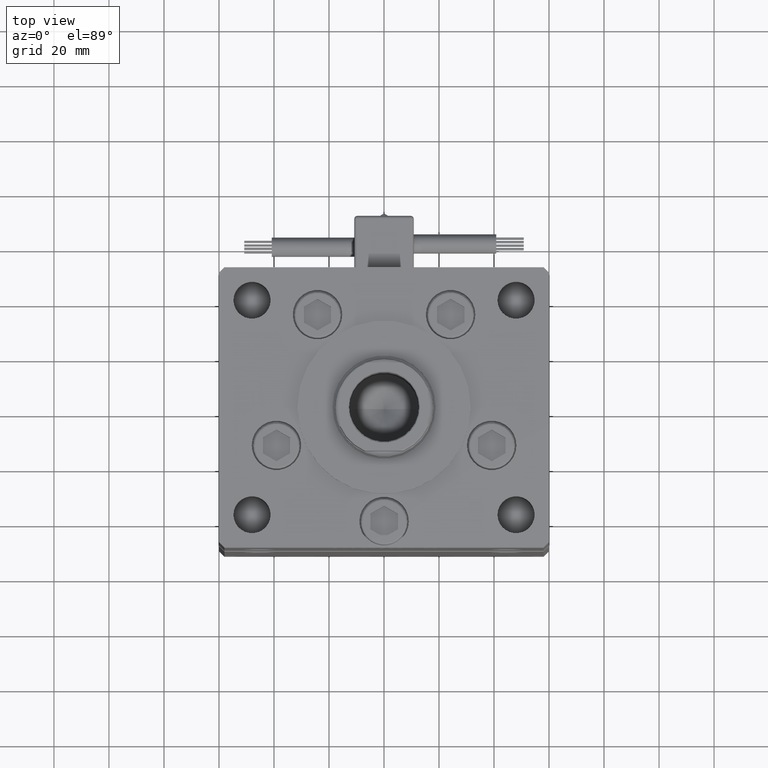
[diagram: clean part render]
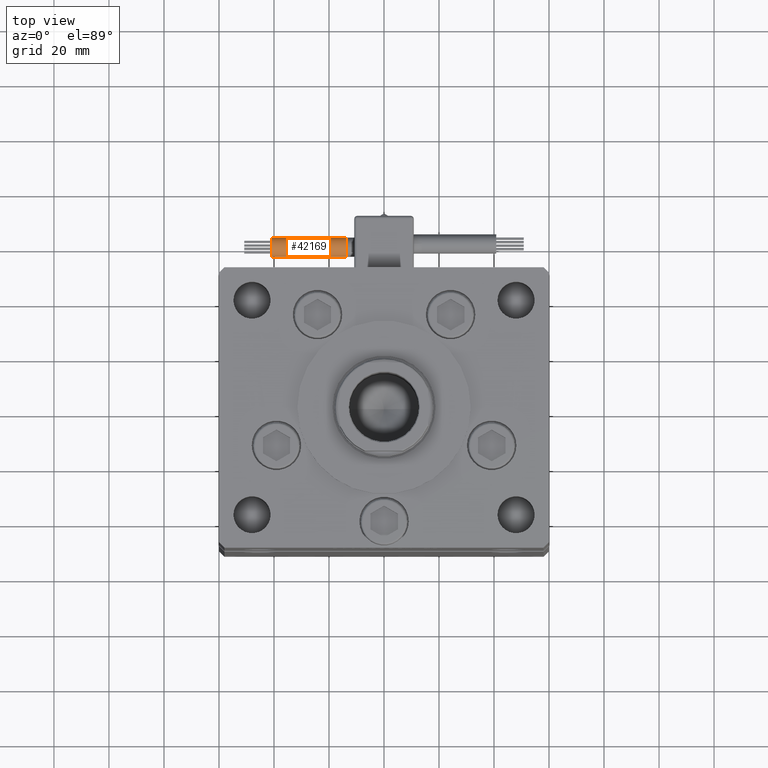
[diagram: same view with one face highlighted and labeled with its STEP entity id]
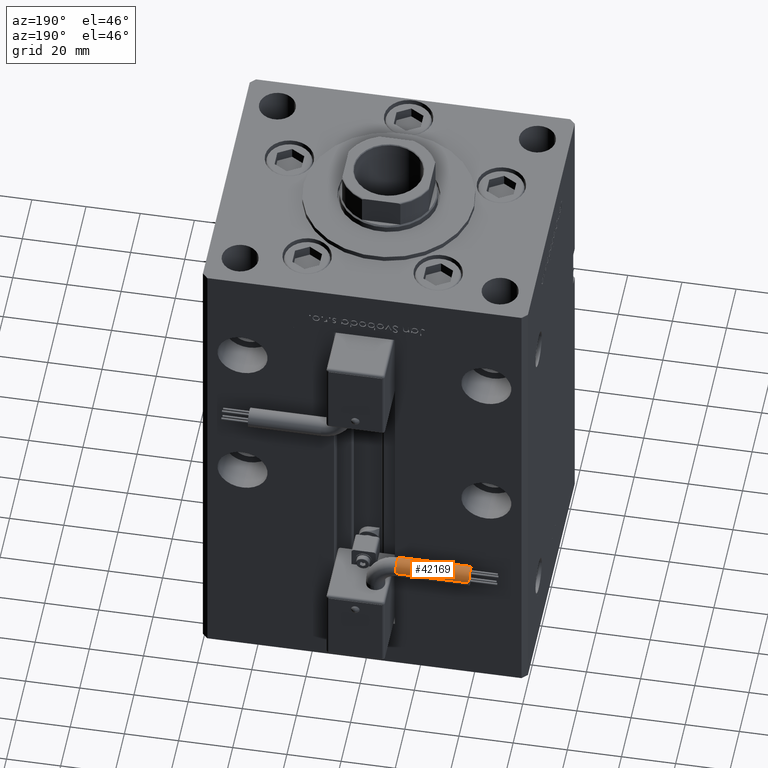
[diagram: same view with one face highlighted and labeled with its STEP entity id]
A machine part, top view. The second image highlights one B-rep face of the part: STEP entity #42169.
A second angle (auxiliary view) of the same face is appended — the face is thin or edge-on in the first view.
In plain terms, the highlighted cylindrical surface (edge-blend (fillet) strip) has radius 3.5 mm, axis along (-1, -0, -0).
Its self-contained STEP definition (entity closure, byte-faithful):
#4520 = CIRCLE ( 'NONE', #27277, 3.500000000000003109 ) ;
#4698 = EDGE_CURVE ( 'NONE', #54183, #52509, #15511, .T. ) ;
#4798 = DIRECTION ( 'NONE',  ( 1.000000000000000000, -2.599999999999999847E-16, 2.220446049250000002E-16 ) ) ;
#7706 = ORIENTED_EDGE ( 'NONE', *, *, #4698, .T. ) ;
#8772 = DIRECTION ( 'NONE',  ( 1.000000000000000000, 0.000000000000000000, 2.220446049250000002E-16 ) ) ;
#9376 = DIRECTION ( 'NONE',  ( -4.956352788505158337E-16, -1.000000000000000000, 0.000000000000000000 ) ) ;
#11042 = DIRECTION ( 'NONE',  ( 0.000000000000000000, 0.000000000000000000, -1.000000000000000000 ) ) ;
#11944 = VECTOR ( 'NONE', #54287, 1000.000000000000000 ) ;
#12543 = CARTESIAN_POINT ( 'NONE',  ( 13.79999999999999893, 42.00000000000000000, -65.00000000000000000 ) ) ;
#15511 = LINE ( 'NONE', #41171, #11944 ) ;
#19048 = CARTESIAN_POINT ( 'NONE',  ( 40.80000000000000426, 45.50000000000000711, -65.00000000000000000 ) ) ;
#20120 = EDGE_CURVE ( 'NONE', #45503, #51771, #25311, .T. ) ;
#20629 = CARTESIAN_POINT ( 'NONE',  ( 13.79999999999999893, 42.00000000000000000, -68.50000000000000000 ) ) ;
#21606 = CARTESIAN_POINT ( 'NONE',  ( 13.79999999999999893, 42.00000000000000000, -65.00000000000000000 ) ) ;
#22489 = CARTESIAN_POINT ( 'NONE',  ( 13.79999999999999893, 42.00000000000000000, -65.00000000000000000 ) ) ;
#25311 = LINE ( 'NONE', #25582, #27830 ) ;
#25582 = CARTESIAN_POINT ( 'NONE',  ( 13.79999999999999716, 38.50000000000000000, -65.00000000000000000 ) ) ;
#25851 = DIRECTION ( 'NONE',  ( 1.000000000000000000, -2.599999999999999847E-16, 2.220446049250000002E-16 ) ) ;
#26334 = EDGE_LOOP ( 'NONE', ( #48229, #38513, #7706, #34763, #42256 ) ) ;
#27277 = AXIS2_PLACEMENT_3D ( 'NONE', #40674, #31831, #11042 ) ;
#27830 = VECTOR ( 'NONE', #25851, 1000.000000000000000 ) ;
#31420 = EDGE_CURVE ( 'NONE', #45503, #55039, #38758, .T. ) ;
#31831 = DIRECTION ( 'NONE',  ( 1.000000000000000000, 0.000000000000000000, 2.220446049250000002E-16 ) ) ;
#34190 = DIRECTION ( 'NONE',  ( 0.000000000000000000, 0.000000000000000000, -1.000000000000000000 ) ) ;
#34200 = AXIS2_PLACEMENT_3D ( 'NONE', #12543, #42485, #34190 ) ;
#34763 = ORIENTED_EDGE ( 'NONE', *, *, #45973, .F. ) ;
#35013 = CYLINDRICAL_SURFACE ( 'NONE', #53712, 3.500000000000003109 ) ;
#38513 = ORIENTED_EDGE ( 'NONE', *, *, #49594, .T. ) ;
#38758 = CIRCLE ( 'NONE', #34200, 3.500000000000003109 ) ;
#40674 = CARTESIAN_POINT ( 'NONE',  ( 40.80000000000000426, 42.00000000000000000, -65.00000000000000000 ) ) ;
#41171 = CARTESIAN_POINT ( 'NONE',  ( 13.80000000000000071, 45.50000000000000711, -65.00000000000000000 ) ) ;
#42169 = ADVANCED_FACE ( 'NONE', ( #52136 ), #35013, .T. ) ;
#42256 = ORIENTED_EDGE ( 'NONE', *, *, #20120, .F. ) ;
#42485 = DIRECTION ( 'NONE',  ( 1.000000000000000000, 0.000000000000000000, 2.220446049250000002E-16 ) ) ;
#42876 = CIRCLE ( 'NONE', #50171, 3.500000000000003109 ) ;
#43470 = CARTESIAN_POINT ( 'NONE',  ( 13.79999999999999893, 45.50000000000000711, -65.00000000000000000 ) ) ;
#45503 = VERTEX_POINT ( 'NONE', #48428 ) ;
#45973 = EDGE_CURVE ( 'NONE', #51771, #52509, #4520, .T. ) ;
#48229 = ORIENTED_EDGE ( 'NONE', *, *, #31420, .T. ) ;
#48428 = CARTESIAN_POINT ( 'NONE',  ( 13.79999999999999893, 38.50000000000000000, -65.00000000000000000 ) ) ;
#49594 = EDGE_CURVE ( 'NONE', #55039, #54183, #42876, .T. ) ;
#50171 = AXIS2_PLACEMENT_3D ( 'NONE', #21606, #8772, #52102 ) ;
#51771 = VERTEX_POINT ( 'NONE', #54673 ) ;
#52102 = DIRECTION ( 'NONE',  ( 0.000000000000000000, 0.000000000000000000, -1.000000000000000000 ) ) ;
#52136 = FACE_OUTER_BOUND ( 'NONE', #26334, .T. ) ;
#52509 = VERTEX_POINT ( 'NONE', #19048 ) ;
#53712 = AXIS2_PLACEMENT_3D ( 'NONE', #22489, #4798, #9376 ) ;
#54183 = VERTEX_POINT ( 'NONE', #43470 ) ;
#54287 = DIRECTION ( 'NONE',  ( 1.000000000000000000, -2.599999999999999847E-16, 2.220446049250000002E-16 ) ) ;
#54673 = CARTESIAN_POINT ( 'NONE',  ( 40.80000000000000426, 38.50000000000000000, -65.00000000000000000 ) ) ;
#55039 = VERTEX_POINT ( 'NONE', #20629 ) ;